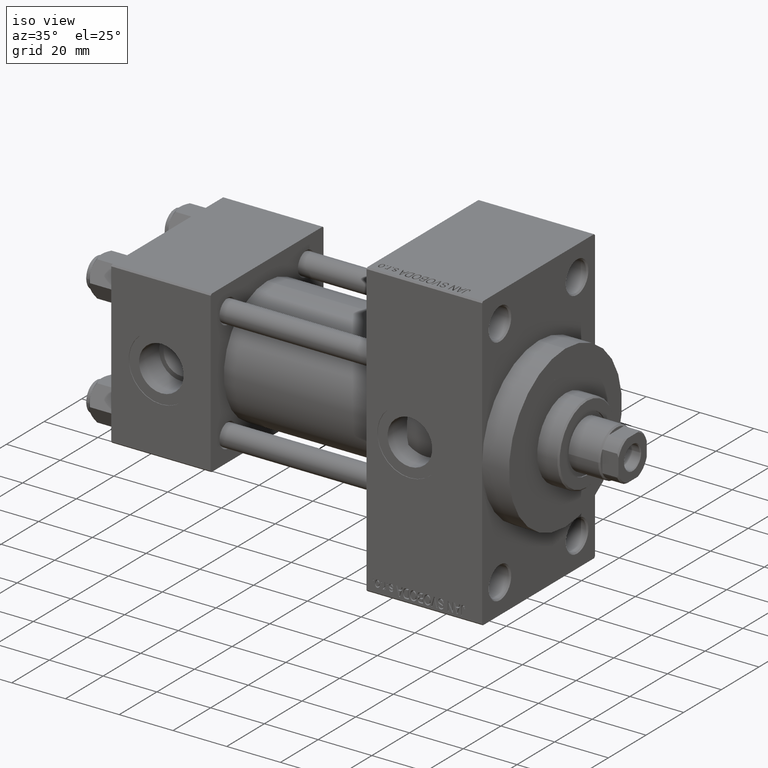
[diagram: clean part render]
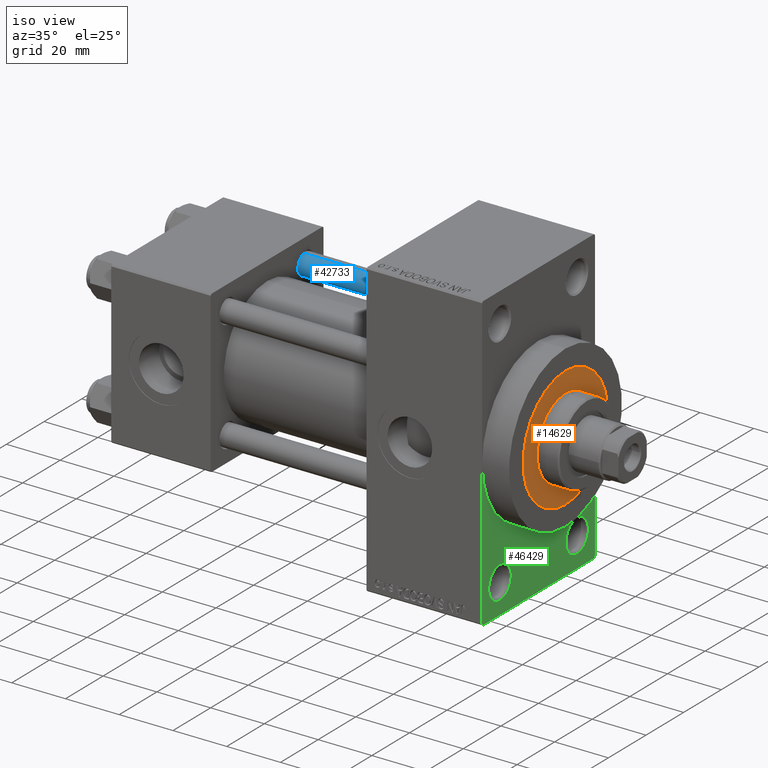
[diagram: same view with three faces highlighted in distinct colors, each labeled with its STEP entity id]
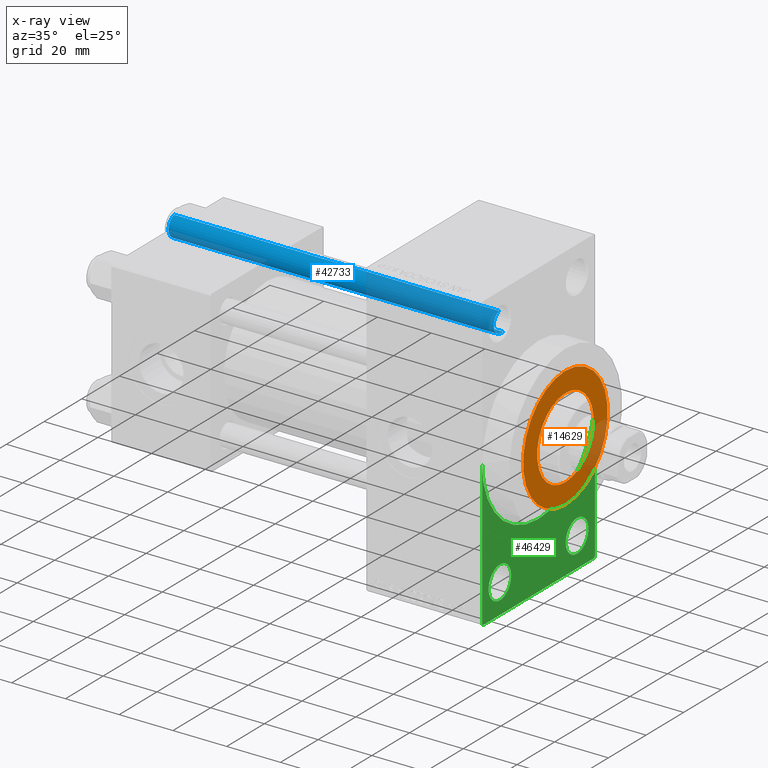
[diagram: x-ray of the same camera — body ghosted, the three highlighted faces saturated]
A machine part, iso view with three faces highlighted in distinct colors.
The next image is the same camera in x-ray (body ghosted, the three faces saturated) — at least one of them is partly hidden behind the body in this view.
Their STEP definitions:

[orange] entity #14629 — the highlighted planar face has unit normal (1, -0, -0).
#601 = FACE_OUTER_BOUND ( 'NONE', #8987, .T. ) ;
#1501 = AXIS2_PLACEMENT_3D ( 'NONE', #43653, #21476, #25064 ) ;
#1719 = DIRECTION ( 'NONE',  ( 0.000000000000000000, 0.000000000000000000, 1.000000000000000000 ) ) ;
#1994 = VERTEX_POINT ( 'NONE', #36073 ) ;
#4307 = AXIS2_PLACEMENT_3D ( 'NONE', #15414, #12067, #29996 ) ;
#4599 = DIRECTION ( 'NONE',  ( 1.000000000000000000, 0.000000000000000000, 0.000000000000000000 ) ) ;
#5082 = CARTESIAN_POINT ( 'NONE',  ( 0.000000000000000000, 0.000000000000000000, 43.25999999999999801 ) ) ;
#6401 = CARTESIAN_POINT ( 'NONE',  ( -22.50000000000000355, 0.000000000000000000, 43.25999999999999801 ) ) ;
#6814 = EDGE_CURVE ( 'NONE', #10441, #1994, #16294, .T. ) ;
#6923 = EDGE_CURVE ( 'NONE', #46466, #36972, #46806, .T. ) ;
#8235 = FACE_BOUND ( 'NONE', #41404, .T. ) ;
#8987 = EDGE_LOOP ( 'NONE', ( #42861, #30453 ) ) ;
#10441 = VERTEX_POINT ( 'NONE', #6401 ) ;
#10587 = DIRECTION ( 'NONE',  ( 1.000000000000000000, 0.000000000000000000, 0.000000000000000000 ) ) ;
#12067 = DIRECTION ( 'NONE',  ( 0.000000000000000000, 0.000000000000000000, 1.000000000000000000 ) ) ;
#12866 = ORIENTED_EDGE ( 'NONE', *, *, #6923, .F. ) ;
#14629 = ADVANCED_FACE ( 'NONE', ( #8235, #601 ), #37390, .T. ) ;
#15414 = CARTESIAN_POINT ( 'NONE',  ( 0.000000000000000000, 0.000000000000000000, 43.25999999999999801 ) ) ;
#16294 = CIRCLE ( 'NONE', #34610, 22.50000000000000355 ) ;
#17849 = CARTESIAN_POINT ( 'NONE',  ( 15.00000000000000000, 1.836970198721029589E-15, 43.25999999999999801 ) ) ;
#21476 = DIRECTION ( 'NONE',  ( 0.000000000000000000, 0.000000000000000000, 1.000000000000000000 ) ) ;
#21859 = CARTESIAN_POINT ( 'NONE',  ( 0.000000000000000000, 0.000000000000000000, 43.25999999999999801 ) ) ;
#22157 = EDGE_CURVE ( 'NONE', #1994, #10441, #45013, .T. ) ;
#22321 = DIRECTION ( 'NONE',  ( 1.000000000000000000, 0.000000000000000000, 0.000000000000000000 ) ) ;
#22826 = EDGE_CURVE ( 'NONE', #36972, #46466, #45810, .T. ) ;
#25064 = DIRECTION ( 'NONE',  ( 1.000000000000000000, 0.000000000000000000, 0.000000000000000000 ) ) ;
#25446 = AXIS2_PLACEMENT_3D ( 'NONE', #5082, #1719, #4599 ) ;
#27152 = CARTESIAN_POINT ( 'NONE',  ( -15.00000000000000000, 0.000000000000000000, 43.25999999999999801 ) ) ;
#29996 = DIRECTION ( 'NONE',  ( 1.000000000000000000, 0.000000000000000000, -0.000000000000000000 ) ) ;
#30453 = ORIENTED_EDGE ( 'NONE', *, *, #22157, .T. ) ;
#33056 = DIRECTION ( 'NONE',  ( 0.000000000000000000, 0.000000000000000000, 1.000000000000000000 ) ) ;
#34610 = AXIS2_PLACEMENT_3D ( 'NONE', #21859, #33056, #22321 ) ;
#36073 = CARTESIAN_POINT ( 'NONE',  ( 22.50000000000000355, 2.755455298081545172E-15, 43.25999999999999801 ) ) ;
#36972 = VERTEX_POINT ( 'NONE', #27152 ) ;
#37390 = PLANE ( 'NONE',  #4307 ) ;
#39220 = ORIENTED_EDGE ( 'NONE', *, *, #22826, .F. ) ;
#41404 = EDGE_LOOP ( 'NONE', ( #39220, #12866 ) ) ;
#42755 = AXIS2_PLACEMENT_3D ( 'NONE', #47153, #43551, #10587 ) ;
#42861 = ORIENTED_EDGE ( 'NONE', *, *, #6814, .T. ) ;
#43551 = DIRECTION ( 'NONE',  ( 0.000000000000000000, 0.000000000000000000, 1.000000000000000000 ) ) ;
#43653 = CARTESIAN_POINT ( 'NONE',  ( 0.000000000000000000, 0.000000000000000000, 43.25999999999999801 ) ) ;
#45013 = CIRCLE ( 'NONE', #1501, 22.50000000000000355 ) ;
#45810 = CIRCLE ( 'NONE', #42755, 15.00000000000000000 ) ;
#46466 = VERTEX_POINT ( 'NONE', #17849 ) ;
#46806 = CIRCLE ( 'NONE', #25446, 15.00000000000000000 ) ;
#47153 = CARTESIAN_POINT ( 'NONE',  ( 0.000000000000000000, 0.000000000000000000, 43.25999999999999801 ) ) ;

[blue] entity #42733 — the highlighted cylindrical surface (edge-blend (fillet) strip) has radius 4 mm, axis along (-1, -0, 0).
#453 = LINE ( 'NONE', #26030, #14039 ) ;
#1156 = FACE_OUTER_BOUND ( 'NONE', #28144, .T. ) ;
#1809 = DIRECTION ( 'NONE',  ( -0.000000000000000000, -0.000000000000000000, -1.000000000000000000 ) ) ;
#2531 = DIRECTION ( 'NONE',  ( -0.000000000000000000, -0.000000000000000000, 1.000000000000000000 ) ) ;
#3975 = AXIS2_PLACEMENT_3D ( 'NONE', #45827, #13095, #42236 ) ;
#4224 = VERTEX_POINT ( 'NONE', #14611 ) ;
#4493 = CARTESIAN_POINT ( 'NONE',  ( 0.000000000000000000, 0.000000000000000000, 122.0000000000000000 ) ) ;
#6100 = LINE ( 'NONE', #24524, #8780 ) ;
#8687 = VERTEX_POINT ( 'NONE', #24159 ) ;
#8780 = VECTOR ( 'NONE', #1809, 1000.000000000000000 ) ;
#11076 = VERTEX_POINT ( 'NONE', #29462 ) ;
#12285 = CARTESIAN_POINT ( 'NONE',  ( 4.000000000000000000, 4.898587196589411843E-16, 0.5000000000000559552 ) ) ;
#12970 = AXIS2_PLACEMENT_3D ( 'NONE', #35524, #2531, #46491 ) ;
#13095 = DIRECTION ( 'NONE',  ( 0.000000000000000000, 0.000000000000000000, -1.000000000000000000 ) ) ;
#13258 = ORIENTED_EDGE ( 'NONE', *, *, #21680, .T. ) ;
#13810 = VERTEX_POINT ( 'NONE', #12285 ) ;
#14039 = VECTOR ( 'NONE', #40812, 1000.000000000000000 ) ;
#14145 = ORIENTED_EDGE ( 'NONE', *, *, #38057, .T. ) ;
#14611 = CARTESIAN_POINT ( 'NONE',  ( -4.000000000000000000, 0.000000000000000000, 121.5000000000000426 ) ) ;
#15075 = AXIS2_PLACEMENT_3D ( 'NONE', #4493, #15744, #26731 ) ;
#15744 = DIRECTION ( 'NONE',  ( -0.000000000000000000, -0.000000000000000000, -1.000000000000000000 ) ) ;
#16850 = CYLINDRICAL_SURFACE ( 'NONE', #15075, 4.000000000000000000 ) ;
#21680 = EDGE_CURVE ( 'NONE', #11076, #13810, #25188, .T. ) ;
#24159 = CARTESIAN_POINT ( 'NONE',  ( 4.000000000000000000, 4.898587196589411843E-16, 121.5000000000000426 ) ) ;
#24524 = CARTESIAN_POINT ( 'NONE',  ( -4.000000000000000000, 0.000000000000000000, 122.0000000000000000 ) ) ;
#25188 = CIRCLE ( 'NONE', #12970, 4.000000000000000000 ) ;
#26030 = CARTESIAN_POINT ( 'NONE',  ( 4.000000000000000000, 4.898587196589411843E-16, 122.0000000000000000 ) ) ;
#26731 = DIRECTION ( 'NONE',  ( -1.000000000000000000, 0.000000000000000000, 0.000000000000000000 ) ) ;
#27232 = EDGE_CURVE ( 'NONE', #8687, #4224, #30696, .T. ) ;
#27447 = ORIENTED_EDGE ( 'NONE', *, *, #27232, .T. ) ;
#28144 = EDGE_LOOP ( 'NONE', ( #34142, #27447, #14145, #13258 ) ) ;
#29462 = CARTESIAN_POINT ( 'NONE',  ( -4.000000000000000000, 0.000000000000000000, 0.5000000000000559552 ) ) ;
#30696 = CIRCLE ( 'NONE', #3975, 4.000000000000000000 ) ;
#34142 = ORIENTED_EDGE ( 'NONE', *, *, #35768, .F. ) ;
#35524 = CARTESIAN_POINT ( 'NONE',  ( 0.000000000000000000, 0.000000000000000000, 0.5000000000000559552 ) ) ;
#35768 = EDGE_CURVE ( 'NONE', #8687, #13810, #453, .T. ) ;
#38057 = EDGE_CURVE ( 'NONE', #4224, #11076, #6100, .T. ) ;
#40812 = DIRECTION ( 'NONE',  ( -0.000000000000000000, -0.000000000000000000, -1.000000000000000000 ) ) ;
#42236 = DIRECTION ( 'NONE',  ( 1.000000000000000000, 0.000000000000000000, 0.000000000000000000 ) ) ;
#42733 = ADVANCED_FACE ( 'NONE', ( #1156 ), #16850, .T. ) ;
#45827 = CARTESIAN_POINT ( 'NONE',  ( 0.000000000000000000, 0.000000000000000000, 121.5000000000000426 ) ) ;
#46491 = DIRECTION ( 'NONE',  ( 1.000000000000000000, 0.000000000000000000, 0.000000000000000000 ) ) ;

[green] entity #46429 — the highlighted planar face has unit normal (-1, 0, 0).
#154 = DIRECTION ( 'NONE',  ( 1.000000000000000000, 0.000000000000000000, 0.000000000000000000 ) ) ;
#561 = CARTESIAN_POINT ( 'NONE',  ( 138.0000000000000000, -20.50000000000000000, -49.50000000000008527 ) ) ;
#1977 = VERTEX_POINT ( 'NONE', #17224 ) ;
#3204 = CARTESIAN_POINT ( 'NONE',  ( 138.0000000000000000, -30.00000000000000000, -53.99999999999998579 ) ) ;
#3277 = CARTESIAN_POINT ( 'NONE',  ( 138.0000000000000000, 20.50000000000000000, -43.50000000000000000 ) ) ;
#3537 = CIRCLE ( 'NONE', #5076, 6.000000000000088818 ) ;
#3729 = CARTESIAN_POINT ( 'NONE',  ( 138.0000000000000000, 29.99999999999999645, -54.49999999999999289 ) ) ;
#4437 = DIRECTION ( 'NONE',  ( 0.000000000000000000, -1.000000000000000000, -1.156482317317871478E-16 ) ) ;
#4646 = DIRECTION ( 'NONE',  ( 0.000000000000000000, 0.000000000000000000, -1.000000000000000000 ) ) ;
#5076 = AXIS2_PLACEMENT_3D ( 'NONE', #33533, #34464, #23030 ) ;
#5797 = VECTOR ( 'NONE', #30766, 1000.000000000000000 ) ;
#5840 = CARTESIAN_POINT ( 'NONE',  ( 138.0000000000000000, -20.50000000000000000, -43.50000000000000000 ) ) ;
#7226 = ORIENTED_EDGE ( 'NONE', *, *, #30400, .F. ) ;
#7775 = FACE_OUTER_BOUND ( 'NONE', #25705, .T. ) ;
#7806 = CARTESIAN_POINT ( 'NONE',  ( 138.0000000000000000, 20.50000000000000000, -49.50000000000008527 ) ) ;
#8736 = VERTEX_POINT ( 'NONE', #38923 ) ;
#10031 = VERTEX_POINT ( 'NONE', #36956 ) ;
#10910 = EDGE_CURVE ( 'NONE', #28805, #46834, #41539, .T. ) ;
#11529 = VECTOR ( 'NONE', #42610, 1000.000000000000000 ) ;
#11599 = AXIS2_PLACEMENT_3D ( 'NONE', #25509, #154, #40511 ) ;
#12231 = CARTESIAN_POINT ( 'NONE',  ( 138.0000000000000000, 20.50000000000000000, -37.49999999999990763 ) ) ;
#12445 = ORIENTED_EDGE ( 'NONE', *, *, #41315, .T. ) ;
#12920 = EDGE_CURVE ( 'NONE', #10031, #8736, #19065, .T. ) ;
#13133 = CIRCLE ( 'NONE', #11599, 30.00000000000000000 ) ;
#13395 = VECTOR ( 'NONE', #13936, 1000.000000000000114 ) ;
#13936 = DIRECTION ( 'NONE',  ( -0.000000000000000000, 0.7071067811865474617, 0.7071067811865474617 ) ) ;
#14876 = ORIENTED_EDGE ( 'NONE', *, *, #39716, .T. ) ;
#15900 = DIRECTION ( 'NONE',  ( 0.000000000000000000, 0.000000000000000000, 1.000000000000000000 ) ) ;
#16511 = EDGE_CURVE ( 'NONE', #46648, #34550, #18265, .T. ) ;
#16953 = VECTOR ( 'NONE', #4646, 1000.000000000000000 ) ;
#17224 = CARTESIAN_POINT ( 'NONE',  ( 138.0000000000000000, -20.50000000000000000, -37.49999999999990763 ) ) ;
#17295 = CARTESIAN_POINT ( 'NONE',  ( 138.0000000000000000, 20.50000000000000000, -43.50000000000000000 ) ) ;
#17498 = DIRECTION ( 'NONE',  ( 1.000000000000000000, 0.000000000000000000, 0.000000000000000000 ) ) ;
#17867 = DIRECTION ( 'NONE',  ( 0.000000000000000000, 0.000000000000000000, 1.000000000000000000 ) ) ;
#17944 = AXIS2_PLACEMENT_3D ( 'NONE', #35996, #36951, #46982 ) ;
#18017 = CARTESIAN_POINT ( 'NONE',  ( 138.0000000000000000, -29.50000000000000355, -54.50000000000000000 ) ) ;
#18265 = CIRCLE ( 'NONE', #27416, 30.00000000000000000 ) ;
#19065 = LINE ( 'NONE', #33638, #13395 ) ;
#19480 = CARTESIAN_POINT ( 'NONE',  ( 138.0000000000000000, 29.99999999999999645, 54.49999999999999289 ) ) ;
#19865 = CARTESIAN_POINT ( 'NONE',  ( 138.0000000000000000, 30.00000000000000000, 0.000000000000000000 ) ) ;
#19958 = CARTESIAN_POINT ( 'NONE',  ( 138.0000000000000000, 3.673940397442059178E-15, -30.00000000000000000 ) ) ;
#20170 = DIRECTION ( 'NONE',  ( 0.000000000000000000, 0.000000000000000000, 1.000000000000000000 ) ) ;
#20427 = DIRECTION ( 'NONE',  ( -1.000000000000000000, 0.000000000000000000, -0.000000000000000000 ) ) ;
#20793 = ORIENTED_EDGE ( 'NONE', *, *, #25502, .T. ) ;
#20929 = ORIENTED_EDGE ( 'NONE', *, *, #10910, .T. ) ;
#22152 = FACE_BOUND ( 'NONE', #32896, .T. ) ;
#22397 = PLANE ( 'NONE',  #17944 ) ;
#22531 = AXIS2_PLACEMENT_3D ( 'NONE', #17295, #46427, #20170 ) ;
#23030 = DIRECTION ( 'NONE',  ( 0.000000000000000000, 0.000000000000000000, 1.000000000000000000 ) ) ;
#24643 = CIRCLE ( 'NONE', #28456, 6.000000000000088818 ) ;
#24679 = DIRECTION ( 'NONE',  ( 0.000000000000000000, 0.000000000000000000, -1.000000000000000000 ) ) ;
#24944 = VECTOR ( 'NONE', #4437, 1000.000000000000000 ) ;
#25449 = EDGE_CURVE ( 'NONE', #1977, #39168, #46619, .T. ) ;
#25502 = EDGE_CURVE ( 'NONE', #35158, #37961, #46910, .T. ) ;
#25509 = CARTESIAN_POINT ( 'NONE',  ( 138.0000000000000000, 0.000000000000000000, 0.000000000000000000 ) ) ;
#25705 = EDGE_LOOP ( 'NONE', ( #14876, #20793, #29981, #36726, #7226, #43281, #28748 ) ) ;
#27291 = EDGE_CURVE ( 'NONE', #41702, #46648, #13133, .T. ) ;
#27416 = AXIS2_PLACEMENT_3D ( 'NONE', #35667, #17498, #24679 ) ;
#28152 = EDGE_CURVE ( 'NONE', #46834, #28805, #24643, .T. ) ;
#28456 = AXIS2_PLACEMENT_3D ( 'NONE', #3277, #38489, #17867 ) ;
#28748 = ORIENTED_EDGE ( 'NONE', *, *, #27291, .F. ) ;
#28805 = VERTEX_POINT ( 'NONE', #12231 ) ;
#29981 = ORIENTED_EDGE ( 'NONE', *, *, #40856, .F. ) ;
#30400 = EDGE_CURVE ( 'NONE', #34550, #8736, #38089, .T. ) ;
#30766 = DIRECTION ( 'NONE',  ( 0.000000000000000000, 0.000000000000000000, -1.000000000000000000 ) ) ;
#31313 = EDGE_LOOP ( 'NONE', ( #33868, #20929 ) ) ;
#32896 = EDGE_LOOP ( 'NONE', ( #12445, #33729 ) ) ;
#33533 = CARTESIAN_POINT ( 'NONE',  ( 138.0000000000000000, -20.50000000000000000, -43.50000000000000000 ) ) ;
#33638 = CARTESIAN_POINT ( 'NONE',  ( 138.0000000000000000, 29.99999999999999645, -53.99999999999999289 ) ) ;
#33729 = ORIENTED_EDGE ( 'NONE', *, *, #25449, .T. ) ;
#33868 = ORIENTED_EDGE ( 'NONE', *, *, #28152, .T. ) ;
#34464 = DIRECTION ( 'NONE',  ( -1.000000000000000000, 0.000000000000000000, -0.000000000000000000 ) ) ;
#34550 = VERTEX_POINT ( 'NONE', #19865 ) ;
#35158 = VERTEX_POINT ( 'NONE', #3204 ) ;
#35667 = CARTESIAN_POINT ( 'NONE',  ( 138.0000000000000000, 0.000000000000000000, 0.000000000000000000 ) ) ;
#35996 = CARTESIAN_POINT ( 'NONE',  ( 138.0000000000000000, 0.000000000000000000, 0.000000000000000000 ) ) ;
#36726 = ORIENTED_EDGE ( 'NONE', *, *, #12920, .T. ) ;
#36951 = DIRECTION ( 'NONE',  ( -1.000000000000000000, 0.000000000000000000, -0.000000000000000000 ) ) ;
#36956 = CARTESIAN_POINT ( 'NONE',  ( 138.0000000000000000, 29.49999999999999645, -54.49999999999999289 ) ) ;
#37433 = CARTESIAN_POINT ( 'NONE',  ( 138.0000000000000000, -29.50000000000000355, -54.50000000000000000 ) ) ;
#37932 = LINE ( 'NONE', #42219, #5797 ) ;
#37961 = VERTEX_POINT ( 'NONE', #37433 ) ;
#38089 = LINE ( 'NONE', #19480, #16953 ) ;
#38489 = DIRECTION ( 'NONE',  ( -1.000000000000000000, 0.000000000000000000, -0.000000000000000000 ) ) ;
#38923 = CARTESIAN_POINT ( 'NONE',  ( 138.0000000000000000, 29.99999999999999645, -53.99999999999999289 ) ) ;
#39168 = VERTEX_POINT ( 'NONE', #561 ) ;
#39566 = LINE ( 'NONE', #3729, #24944 ) ;
#39716 = EDGE_CURVE ( 'NONE', #41702, #35158, #37932, .T. ) ;
#40511 = DIRECTION ( 'NONE',  ( 0.000000000000000000, 0.000000000000000000, -1.000000000000000000 ) ) ;
#40856 = EDGE_CURVE ( 'NONE', #10031, #37961, #39566, .T. ) ;
#41315 = EDGE_CURVE ( 'NONE', #39168, #1977, #3537, .T. ) ;
#41539 = CIRCLE ( 'NONE', #22531, 6.000000000000088818 ) ;
#41702 = VERTEX_POINT ( 'NONE', #44560 ) ;
#42219 = CARTESIAN_POINT ( 'NONE',  ( 138.0000000000000000, -30.00000000000000000, 54.50000000000000000 ) ) ;
#42610 = DIRECTION ( 'NONE',  ( 0.000000000000000000, 0.7071067811865352493, -0.7071067811865597852 ) ) ;
#43281 = ORIENTED_EDGE ( 'NONE', *, *, #16511, .F. ) ;
#44094 = FACE_BOUND ( 'NONE', #31313, .T. ) ;
#44560 = CARTESIAN_POINT ( 'NONE',  ( 138.0000000000000000, -30.00000000000000000, 0.000000000000000000 ) ) ;
#45108 = AXIS2_PLACEMENT_3D ( 'NONE', #5840, #20427, #15900 ) ;
#46427 = DIRECTION ( 'NONE',  ( -1.000000000000000000, 0.000000000000000000, -0.000000000000000000 ) ) ;
#46429 = ADVANCED_FACE ( 'NONE', ( #22152, #44094, #7775 ), #22397, .F. ) ;
#46619 = CIRCLE ( 'NONE', #45108, 6.000000000000088818 ) ;
#46648 = VERTEX_POINT ( 'NONE', #19958 ) ;
#46834 = VERTEX_POINT ( 'NONE', #7806 ) ;
#46910 = LINE ( 'NONE', #18017, #11529 ) ;
#46982 = DIRECTION ( 'NONE',  ( -0.000000000000000000, 0.000000000000000000, 1.000000000000000000 ) ) ;